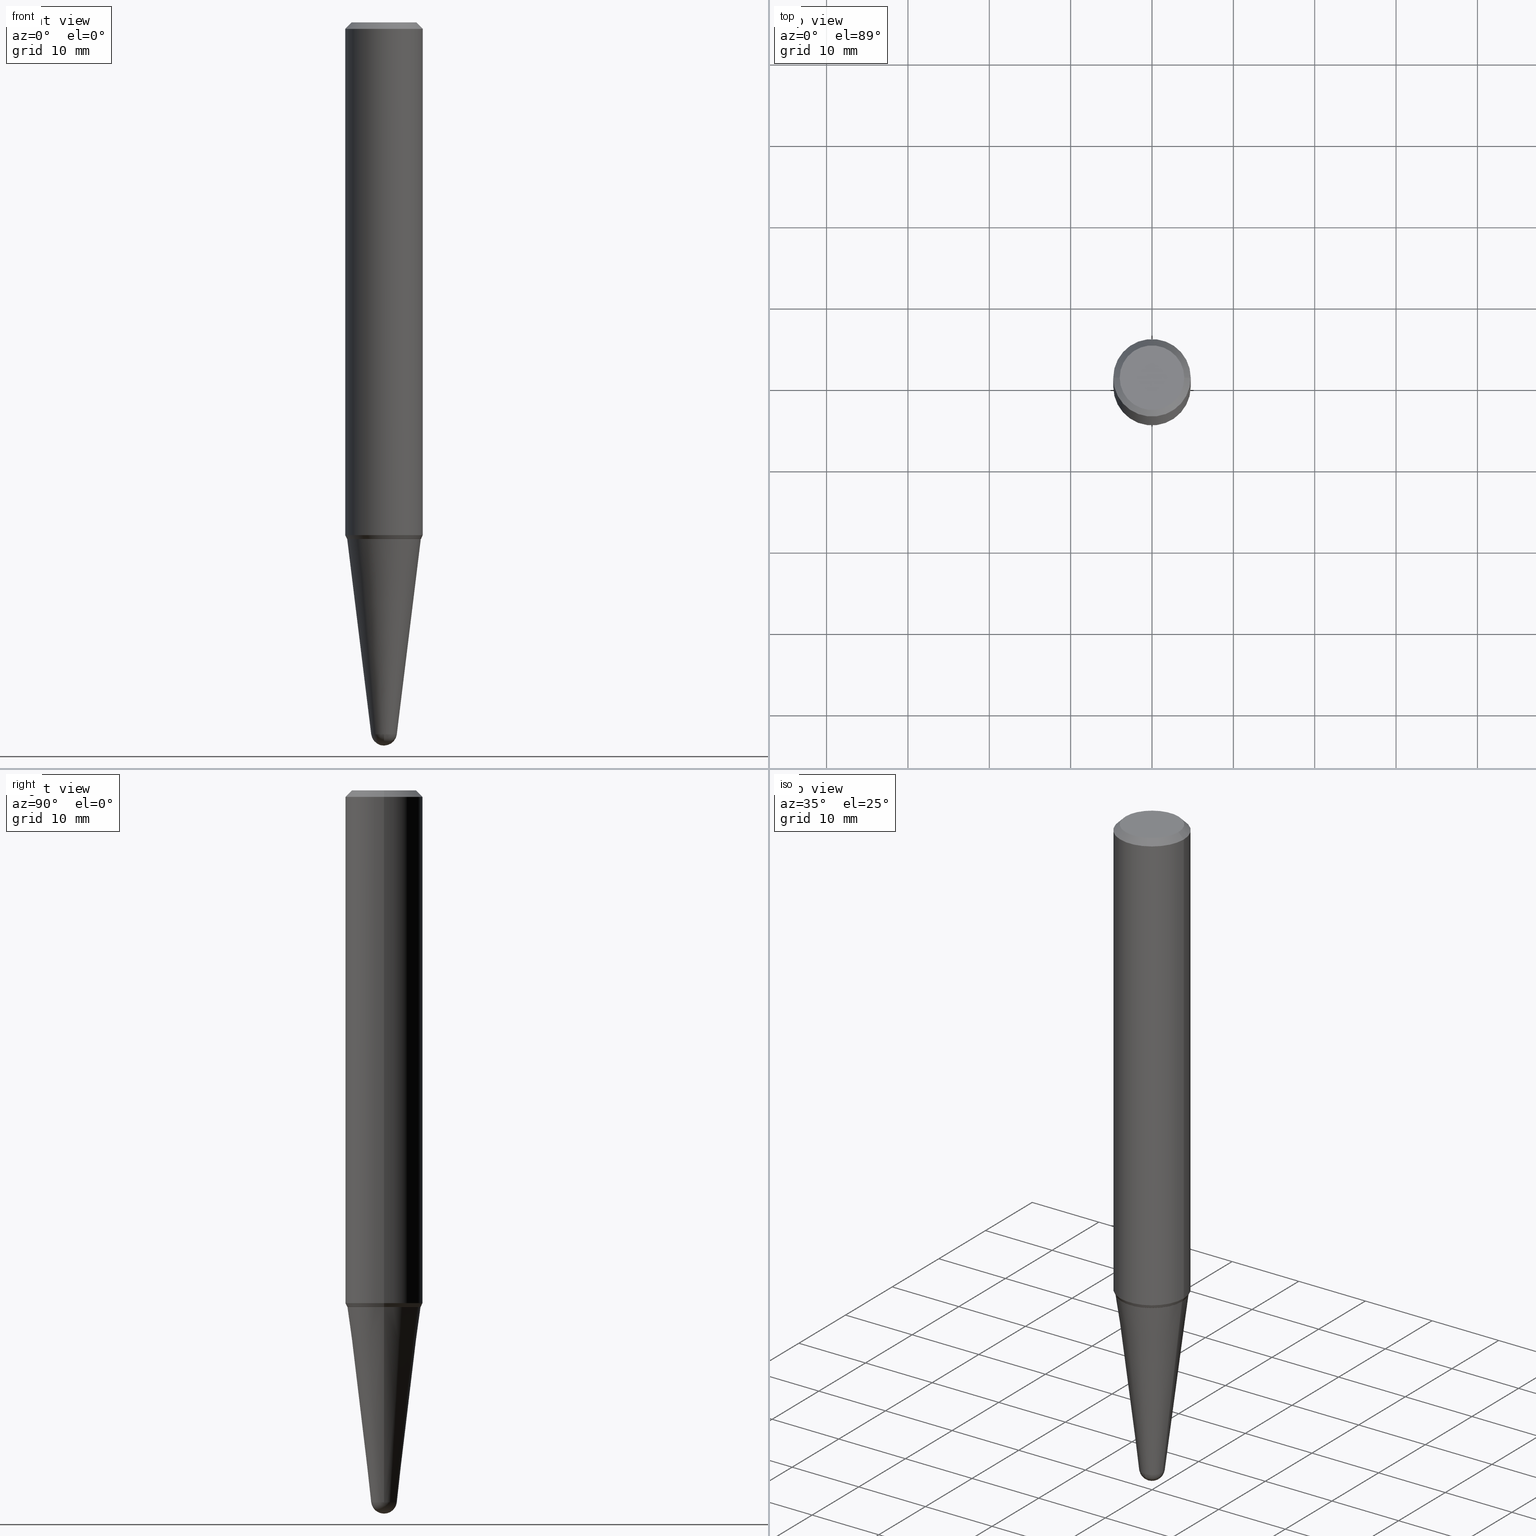
[diagram: canonical four-view strip — front | top / right | iso, engineering-drawing reading convention]
A machine part, canonical four-view strip (front | top / right | iso — engineering-drawing reading convention). The complete STEP part file that produces these views, byte-faithful:
ISO-10303-21;
HEADER;
FILE_DESCRIPTION (( 'STEP AP203' ),
    '1' );
FILE_NAME ('32426.STEP',
    '2024-03-04T15:23:30',
    ( '' ),
    ( '' ),
    'SwSTEP 2.0',
    'SolidWorks 2023',
    '' );
FILE_SCHEMA (( 'CONFIG_CONTROL_DESIGN' ));
ENDSEC;

DATA;
#1 = ORIENTED_EDGE ( 'NONE', *, *, #248, .T. ) ;
#2 = COORDINATED_UNIVERSAL_TIME_OFFSET ( 5, 0, .BEHIND. ) ;
#3 = CC_DESIGN_APPROVAL ( #399, ( #174 ) ) ;
#4 = DIRECTION ( 'NONE',  ( 2.438088387897960049E-29, -3.491481338843145188E-15, -1.000000000000000000 ) ) ;
#5 = DIRECTION ( 'NONE',  ( -2.445468806185136597E-29, 3.491481338843145583E-15, 1.000000000000000000 ) ) ;
#6 = AXIS2_PLACEMENT_3D ( 'NONE', #19, #198, #447 ) ;
#7 = CIRCLE ( 'NONE', #357, 0.06203413447758302640 ) ;
#8 = ORIENTED_EDGE ( 'NONE', *, *, #44, .F. ) ;
#9 = ORIENTED_EDGE ( 'NONE', *, *, #200, .T. ) ;
#10 = CARTESIAN_POINT ( 'NONE',  ( 8.424925751119379227E-29, -1.202856113591557066E-14, -3.445116833962821534 ) ) ;
#11 = PRODUCT_RELATED_PRODUCT_CATEGORY ( 'detail', '', ( #172 ) ) ;
#12 = DIRECTION ( 'NONE',  ( 1.000000000000000000, -6.982962677686273810E-15, 0.000000000000000000 ) ) ;
#13 = ORIENTED_EDGE ( 'NONE', *, *, #458, .F. ) ;
#14 = DATE_AND_TIME ( #288, #429 ) ;
#15 = DIRECTION ( 'NONE',  ( 1.000000000000000000, -6.982962677686270655E-15, 0.000000000000000000 ) ) ;
#16 = CARTESIAN_POINT ( 'NONE',  ( 6.068291489219931183E-29, -8.663911982718648619E-15, -2.481443015699839716 ) ) ;
#17 = AXIS2_PLACEMENT_3D ( 'NONE', #300, #185, #403 ) ;
#18 =( NAMED_UNIT ( * ) SI_UNIT ( $, .STERADIAN. ) SOLID_ANGLE_UNIT ( ) );
#19 = CARTESIAN_POINT ( 'NONE',  ( 1.481771224913538024E-44, -2.115576599110663894E-30, -6.059252202137306602E-16 ) ) ;
#20 = DIRECTION ( 'NONE',  ( -2.445468806185136597E-29, 3.491481338843145583E-15, 1.000000000000000000 ) ) ;
#21 = CARTESIAN_POINT ( 'NONE',  ( 0.1562500000000004163, -1.233702489286408510E-15, -6.059252202137225744E-16 ) ) ;
#22 = PERSON_AND_ORGANIZATION ( #278, #153 ) ;
#23 = ORIENTED_EDGE ( 'NONE', *, *, #378, .F. ) ;
#24 = DIRECTION ( 'NONE',  ( 1.000000000000000000, -6.982962677686261189E-15, 0.000000000000000000 ) ) ;
#25 = SPHERICAL_SURFACE ( 'NONE', #117, 0.06250000000000013878 ) ;
#26 = AXIS2_PLACEMENT_3D ( 'NONE', #352, #4, #341 ) ;
#27 = VERTEX_POINT ( 'NONE', #62 ) ;
#28 = DIRECTION ( 'NONE',  ( -1.000000000000000000, 7.105427357601001070E-15, -4.926315508542082329E-29 ) ) ;
#29 = LINE ( 'NONE', #65, #213 ) ;
#30 = DIRECTION ( 'NONE',  ( 1.000000000000000000, -6.982962677686273810E-15, 0.000000000000000000 ) ) ;
#31 = ORIENTED_EDGE ( 'NONE', *, *, #378, .T. ) ;
#32 = APPROVAL_ROLE ( '' ) ;
#33 = DIRECTION ( 'NONE',  ( -2.445468806185136877E-29, 3.491481338843145188E-15, 1.000000000000000000 ) ) ;
#34 = DATE_AND_TIME ( #302, #375 ) ;
#35 = AXIS2_PLACEMENT_3D ( 'NONE', #245, #392, #209 ) ;
#36 = CARTESIAN_POINT ( 'NONE',  ( 6.113672015462839250E-29, -8.728703347107860209E-15, -2.499999999999999112 ) ) ;
#37 = ADVANCED_BREP_SHAPE_REPRESENTATION ( '32426', ( #351, #43, #17 ), #428 ) ;
#38 = ORIENTED_EDGE ( 'NONE', *, *, #319, .T. ) ;
#39 = DIRECTION ( 'NONE',  ( 1.000000000000000000, -6.982962677686273810E-15, 0.000000000000000000 ) ) ;
#40 = VECTOR ( 'NONE', #418, 39.37007874015748143 ) ;
#41 = DIRECTION ( 'NONE',  ( 1.000000000000000000, -6.982962677686270655E-15, 0.000000000000000000 ) ) ;
#42 = CIRCLE ( 'NONE', #359, 0.06250000000000013878 ) ;
#43 = MANIFOLD_SOLID_BREP ( 'Body-Move/Copy2[2]', #267 ) ;
#44 = EDGE_CURVE ( 'NONE', #425, #314, #42, .T. ) ;
#45 = PLANE ( 'NONE',  #259 ) ;
#46 = ORIENTED_EDGE ( 'NONE', *, *, #410, .T. ) ;
#47 = ADVANCED_FACE ( 'NONE', ( #261 ), #367, .T. ) ;
#48 = APPROVAL_DATE_TIME ( #14, #132 ) ;
#49 = DIRECTION ( 'NONE',  ( -1.000000000000000000, 6.982962677686266711E-15, 0.000000000000000000 ) ) ;
#50 = ADVANCED_FACE ( 'NONE', ( #236 ), #347, .T. ) ;
#51 = APPROVAL_STATUS ( 'not_yet_approved' ) ;
#52 = ADVANCED_FACE ( 'NONE', ( #380 ), #104, .T. ) ;
#53 = AXIS2_PLACEMENT_3D ( 'NONE', #95, #309, #460 ) ;
#54 = CIRCLE ( 'NONE', #6, 0.1562500000000004163 ) ;
#55 = PERSON_AND_ORGANIZATION ( #278, #153 ) ;
#56 = CARTESIAN_POINT ( 'NONE',  ( 1.481771224913538024E-44, -2.115576599110663894E-30, -6.059252202137306602E-16 ) ) ;
#57 = EDGE_CURVE ( 'NONE', #150, #350, #85, .T. ) ;
#58 = LENGTH_MEASURE_WITH_UNIT ( LENGTH_MEASURE( 0.02539999999999999897 ), #118 );
#59 = CARTESIAN_POINT ( 'NONE',  ( 0.1874999999999999722, -1.418414293905023123E-15, -0.03125000000000003469 ) ) ;
#60 = PERSON_AND_ORGANIZATION_ROLE ( 'creator' ) ;
#61 = AXIS2_PLACEMENT_3D ( 'NONE', #168, #271, #169 ) ;
#62 = CARTESIAN_POINT ( 'NONE',  ( -0.06203413447758302640, -9.525575862499874588E-15, -3.445116833962821534 ) ) ;
#63 = CARTESIAN_POINT ( 'NONE',  ( 7.642090019328561499E-31, -1.091087918388484350E-16, -0.03125000000000003469 ) ) ;
#64 = DIRECTION ( 'NONE',  ( 1.000000000000000000, -6.982962677686266711E-15, 0.000000000000000000 ) ) ;
#65 = CARTESIAN_POINT ( 'NONE',  ( 0.1875000000000001388, -1.309305502066173825E-15, 5.931196827434387479E-16 ) ) ;
#66 = CARTESIAN_POINT ( 'NONE',  ( -4.407790362220312438E-16, -0.06203413447759470456, -3.445116833962821534 ) ) ;
#67 = AXIS2_PLACEMENT_3D ( 'NONE', #122, #157, #301 ) ;
#68 = VECTOR ( 'NONE', #197, 39.37007874015748143 ) ;
#69 = LINE ( 'NONE', #125, #322 ) ;
#70 = EDGE_CURVE ( 'NONE', #412, #110, #143, .T. ) ;
#71 = DIRECTION ( 'NONE',  ( -2.445468806185136597E-29, 3.491481338843145583E-15, 1.000000000000000000 ) ) ;
#72 = ORIENTED_EDGE ( 'NONE', *, *, #70, .T. ) ;
#73 = EDGE_CURVE ( 'NONE', #294, #111, #431, .T. ) ;
#74 = DIRECTION ( 'NONE',  ( 1.000000000000000000, -6.982962677686261977E-15, 0.000000000000000000 ) ) ;
#75 = FACE_OUTER_BOUND ( 'NONE', #283, .T. ) ;
#76 = EDGE_LOOP ( 'NONE', ( #91, #265, #9, #233 ) ) ;
#77 = AXIS2_PLACEMENT_3D ( 'NONE', #393, #433, #41 ) ;
#78 = ORIENTED_EDGE ( 'NONE', *, *, #436, .F. ) ;
#79 = EDGE_LOOP ( 'NONE', ( #182, #215, #227, #170 ) ) ;
#80 = DIRECTION ( 'NONE',  ( 2.445468806185136597E-29, -3.491481338843145583E-15, -1.000000000000000000 ) ) ;
#81 = ADVANCED_FACE ( 'NONE', ( #190 ), #407, .T. ) ;
#82 = APPLICATION_PROTOCOL_DEFINITION ( 'international standard', 'config_control_design', 1994, #338 ) ;
#83 = CC_DESIGN_DATE_AND_TIME_ASSIGNMENT ( #34, #270, ( #120 ) ) ;
#84 = APPROVAL_DATE_TIME ( #400, #223 ) ;
#85 = CIRCLE ( 'NONE', #362, 0.1875000000000003331 ) ;
#86 = AXIS2_PLACEMENT_3D ( 'NONE', #56, #376, #297 ) ;
#87 = ORIENTED_EDGE ( 'NONE', *, *, #458, .T. ) ;
#88 = DIRECTION ( 'NONE',  ( 6.982962677686265922E-15, 1.000000000000000000, 0.000000000000000000 ) ) ;
#89 = CARTESIAN_POINT ( 'NONE',  ( 8.854442568795960594E-29, -1.179729577650343892E-14, -3.500000000000000000 ) ) ;
#90 = DIRECTION ( 'NONE',  ( -0.1218693434051475594, 4.331390133080061195E-15, 0.9925461516413219831 ) ) ;
#91 = ORIENTED_EDGE ( 'NONE', *, *, #410, .F. ) ;
#92 = EDGE_CURVE ( 'NONE', #27, #412, #225, .T. ) ;
#93 = ORIENTED_EDGE ( 'NONE', *, *, #448, .F. ) ;
#94 = DIRECTION ( 'NONE',  ( -1.000000000000000000, 6.982962677686265922E-15, -4.883557194083112340E-29 ) ) ;
#95 = CARTESIAN_POINT ( 'NONE',  ( 6.112449281059747569E-29, -8.726957606438441072E-15, -2.499499999999999389 ) ) ;
#96 = UNCERTAINTY_MEASURE_WITH_UNIT (LENGTH_MEASURE( 1.000000000000000082E-05 ), #264, 'distance_accuracy_value', 'NONE');
#97 = PLANE ( 'NONE',  #321 ) ;
#98 = EDGE_LOOP ( 'NONE', ( #221, #38, #398, #454, #435 ) ) ;
#99 = DIRECTION ( 'NONE',  ( -7.105427357601000281E-15, -1.000000000000000000, 0.000000000000000000 ) ) ;
#100 = DIRECTION ( 'NONE',  ( -2.445468806185136877E-29, 3.491481338843145188E-15, 1.000000000000000000 ) ) ;
#101 = FACE_OUTER_BOUND ( 'NONE', #434, .T. ) ;
#102 = CARTESIAN_POINT ( 'NONE',  ( -1.450455682483482035E-44, 2.070866303999251778E-30, 5.931196827434296760E-16 ) ) ;
#103 = AXIS2_PLACEMENT_3D ( 'NONE', #295, #20, #64 ) ;
#104 = CONICAL_SURFACE ( 'NONE', #203, 0.1790798899376514486, 0.4363323129985706705 ) ;
#105 = CARTESIAN_POINT ( 'NONE',  ( 8.424925751119379227E-29, -1.202856113591557066E-14, -3.445116833962821534 ) ) ;
#106 = EDGE_CURVE ( 'NONE', #350, #150, #280, .T. ) ;
#107 = VERTEX_POINT ( 'NONE', #59 ) ;
#108 = VECTOR ( 'NONE', #379, 39.37007874015748143 ) ;
#109 = DIRECTION ( 'NONE',  ( -2.445468806185136597E-29, 3.491481338843145583E-15, 1.000000000000000000 ) ) ;
#110 = VERTEX_POINT ( 'NONE', #339 ) ;
#111 = VERTEX_POINT ( 'NONE', #21 ) ;
#112 = CC_DESIGN_APPROVAL ( #223, ( #120 ) ) ;
#113 = CC_DESIGN_SECURITY_CLASSIFICATION ( #164, ( #174 ) ) ;
#114 = ORIENTED_EDGE ( 'NONE', *, *, #126, .F. ) ;
#115 = APPROVAL_DATE_TIME ( #340, #399 ) ;
#116 = CIRCLE ( 'NONE', #165, 0.06203413447758302640 ) ;
#117 = AXIS2_PLACEMENT_3D ( 'NONE', #354, #133, #136 ) ;
#118 =( LENGTH_UNIT ( ) NAMED_UNIT ( * ) SI_UNIT ( $, .METRE. ) );
#119 = ORIENTED_EDGE ( 'NONE', *, *, #387, .T. ) ;
#120 = PRODUCT_DEFINITION ( 'UNKNOWN', '', #174, #419 ) ;
#121 = CARTESIAN_POINT ( 'NONE',  ( -0.1780798899376515865, -7.463369625306297822E-15, -2.499999999999999556 ) ) ;
#122 = CARTESIAN_POINT ( 'NONE',  ( 8.424925751119379227E-29, -1.202856113591557066E-14, -3.445116833962821534 ) ) ;
#123 = PERSON_AND_ORGANIZATION_ROLE ( 'design_supplier' ) ;
#124 = FACE_OUTER_BOUND ( 'NONE', #365, .T. ) ;
#125 = CARTESIAN_POINT ( 'NONE',  ( -0.1875000000000001388, 1.332267629550191201E-15, 5.931196827434205055E-16 ) ) ;
#126 = EDGE_CURVE ( 'NONE', #111, #294, #54, .T. ) ;
#127 = CIRCLE ( 'NONE', #390, 0.1790798899376514486 ) ;
#128 = DIRECTION ( 'NONE',  ( -2.445468806185136597E-29, 3.491481338843145583E-15, 1.000000000000000000 ) ) ;
#129 = AXIS2_PLACEMENT_3D ( 'NONE', #155, #413, #24 ) ;
#130 = ORIENTED_EDGE ( 'NONE', *, *, #126, .T. ) ;
#131 = DIRECTION ( 'NONE',  ( -2.445468806185136597E-29, 3.491481338843145583E-15, 1.000000000000000000 ) ) ;
#132 = APPROVAL ( #51, 'UNSPECIFIED' ) ;
#133 = DIRECTION ( 'NONE',  ( -1.000000000000000000, 6.982962677686265922E-15, -4.883557194083112340E-29 ) ) ;
#134 = ORIENTED_EDGE ( 'NONE', *, *, #44, .T. ) ;
#135 = ADVANCED_FACE ( 'NONE', ( #416 ), #257, .T. ) ;
#136 = DIRECTION ( 'NONE',  ( 6.982962677686265922E-15, 1.000000000000000000, 0.000000000000000000 ) ) ;
#137 = CIRCLE ( 'NONE', #147, 0.06250000000000013878 ) ;
#138 = DIRECTION ( 'NONE',  ( 1.000000000000000000, -6.982962677686265922E-15, 4.883557194083112340E-29 ) ) ;
#139 = CARTESIAN_POINT ( 'NONE',  ( 8.424925751119379227E-29, -1.202856113591557066E-14, -3.445116833962821534 ) ) ;
#140 = ADVANCED_FACE ( 'NONE', ( #124 ), #97, .F. ) ;
#141 = VECTOR ( 'NONE', #90, 39.37007874015748143 ) ;
#142 = CONICAL_SURFACE ( 'NONE', #444, 0.1785798899376515592, 0.7853981633977213939 ) ;
#143 = CIRCLE ( 'NONE', #129, 0.1780798899376515865 ) ;
#144 = ORIENTED_EDGE ( 'NONE', *, *, #448, .T. ) ;
#145 = DIRECTION ( 'NONE',  ( -2.445468806185136597E-29, 3.491481338843145583E-15, 1.000000000000000000 ) ) ;
#146 = EDGE_CURVE ( 'NONE', #408, #27, #116, .T. ) ;
#147 = AXIS2_PLACEMENT_3D ( 'NONE', #317, #138, #232 ) ;
#148 = APPROVAL_PERSON_ORGANIZATION ( #331, #132, #186 ) ;
#149 = EDGE_CURVE ( 'NONE', #389, #350, #171, .T. ) ;
#150 = VERTEX_POINT ( 'NONE', #244 ) ;
#151 = PERSON_AND_ORGANIZATION_ROLE ( 'design_owner' ) ;
#152 = CARTESIAN_POINT ( 'NONE',  ( 0.1874999999999999722, -1.395452166421010480E-15, -0.03125000000000003469 ) ) ;
#153 = ORGANIZATION ( 'UNSPECIFIED', 'UNSPECIFIED', '' ) ;
#154 = AXIS2_PLACEMENT_3D ( 'NONE', #230, #369, #333 ) ;
#155 = CARTESIAN_POINT ( 'NONE',  ( 6.113672015462840371E-29, -8.728703347107863365E-15, -2.499999999999999556 ) ) ;
#156 = ORIENTED_EDGE ( 'NONE', *, *, #323, .T. ) ;
#157 = DIRECTION ( 'NONE',  ( -2.445468806185136597E-29, 3.491481338843145583E-15, 1.000000000000000000 ) ) ;
#158 = CALENDAR_DATE ( 2024, 4, 3 ) ;
#159 = CC_DESIGN_PERSON_AND_ORGANIZATION_ASSIGNMENT ( #291, #263, ( #164 ) ) ;
#160 = EDGE_LOOP ( 'NONE', ( #93, #119, #457, #308 ) ) ;
#161 = DIRECTION ( 'NONE',  ( 2.438088387897960049E-29, -3.491481338843145188E-15, -1.000000000000000000 ) ) ;
#162 = CARTESIAN_POINT ( 'NONE',  ( -0.1790798899376514486, -7.454518457279275310E-15, -2.499499999999999389 ) ) ;
#163 = VECTOR ( 'NONE', #337, 39.37007874015748854 ) ;
#164 = SECURITY_CLASSIFICATION ( '', '', #451 ) ;
#165 = AXIS2_PLACEMENT_3D ( 'NONE', #139, #71, #276 ) ;
#166 = ORIENTED_EDGE ( 'NONE', *, *, #269, .F. ) ;
#167 = LINE ( 'NONE', #459, #286 ) ;
#168 = CARTESIAN_POINT ( 'NONE',  ( 7.642090019328561499E-31, -1.091087918388484350E-16, -0.03125000000000003469 ) ) ;
#169 = DIRECTION ( 'NONE',  ( 1.000000000000000000, -6.982962677686266711E-15, 0.000000000000000000 ) ) ;
#170 = ORIENTED_EDGE ( 'NONE', *, *, #220, .F. ) ;
#171 = LINE ( 'NONE', #315, #406 ) ;
#172 = PRODUCT ( '32426', '32426', '', ( #449 ) ) ;
#173 = CARTESIAN_POINT ( 'NONE',  ( -0.1562500000000004163, 1.145642314307903329E-15, -6.059252202137384502E-16 ) ) ;
#174 = PRODUCT_DEFINITION_FORMATION_WITH_SPECIFIED_SOURCE ( 'ANY', '', #172, .NOT_KNOWN. ) ;
#175 = DIRECTION ( 'NONE',  ( -2.438088387897960049E-29, 3.491481338843145188E-15, 1.000000000000000000 ) ) ;
#176 = DIRECTION ( 'NONE',  ( 1.000000000000000000, -6.982962677686270655E-15, 0.000000000000000000 ) ) ;
#177 = CARTESIAN_POINT ( 'NONE',  ( 0.1875000000000003331, -9.973217484784825205E-15, -2.481443015699839716 ) ) ;
#178 = VECTOR ( 'NONE', #396, 39.37007874015748143 ) ;
#179 = CARTESIAN_POINT ( 'NONE',  ( 6.112449281059747569E-29, -8.726957606438441072E-15, -2.499499999999999389 ) ) ;
#180 = CALENDAR_DATE ( 2024, 4, 3 ) ;
#181 = FACE_OUTER_BOUND ( 'NONE', #364, .T. ) ;
#182 = ORIENTED_EDGE ( 'NONE', *, *, #106, .T. ) ;
#183 = AXIS2_PLACEMENT_3D ( 'NONE', #238, #382, #12 ) ;
#184 = ORIENTED_EDGE ( 'NONE', *, *, #73, .T. ) ;
#185 = DIRECTION ( 'NONE',  ( 0.000000000000000000, 0.000000000000000000, 1.000000000000000000 ) ) ;
#186 = APPROVAL_ROLE ( '' ) ;
#187 = ADVANCED_FACE ( 'NONE', ( #386 ), #205, .T. ) ;
#188 = ORIENTED_EDGE ( 'NONE', *, *, #285, .T. ) ;
#189 = CC_DESIGN_PERSON_AND_ORGANIZATION_ASSIGNMENT ( #22, #151, ( #172 ) ) ;
#190 = FACE_OUTER_BOUND ( 'NONE', #251, .T. ) ;
#191 = ORIENTED_EDGE ( 'NONE', *, *, #319, .F. ) ;
#192 =( NAMED_UNIT ( * ) PLANE_ANGLE_UNIT ( ) SI_UNIT ( $, .RADIAN. ) );
#193 = PERSON_AND_ORGANIZATION ( #278, #153 ) ;
#194 = CIRCLE ( 'NONE', #183, 0.06203413447758302640 ) ;
#195 = CARTESIAN_POINT ( 'NONE',  ( -0.1790798899376514486, -7.454518457279275310E-15, -2.499499999999999389 ) ) ;
#196 = DIRECTION ( 'NONE',  ( 2.445468806185136597E-29, -3.491481338843145583E-15, -1.000000000000000000 ) ) ;
#197 = DIRECTION ( 'NONE',  ( 0.1218693434051475594, 2.614447289843978112E-15, 0.9925461516413219831 ) ) ;
#198 = DIRECTION ( 'NONE',  ( -2.445468806185136597E-29, 3.491481338843145583E-15, 1.000000000000000000 ) ) ;
#199 = DIRECTION ( 'NONE',  ( 1.000000000000000000, -6.982962677686265922E-15, 0.000000000000000000 ) ) ;
#200 = EDGE_CURVE ( 'NONE', #310, #389, #167, .T. ) ;
#201 = CIRCLE ( 'NONE', #77, 0.1785798899376515592 ) ;
#202 = CARTESIAN_POINT ( 'NONE',  ( 8.424925751119379227E-29, -1.202856113591557066E-14, -3.445116833962821534 ) ) ;
#203 = AXIS2_PLACEMENT_3D ( 'NONE', #335, #450, #372 ) ;
#204 = DIRECTION ( 'NONE',  ( -1.000000000000000000, 6.982962677686265922E-15, -4.876176775795935793E-29 ) ) ;
#205 = CYLINDRICAL_SURFACE ( 'NONE', #35, 0.1875000000000001388 ) ;
#206 = CIRCLE ( 'NONE', #384, 0.1785798899376515592 ) ;
#207 = EDGE_CURVE ( 'NONE', #314, #345, #194, .T. ) ;
#208 = EDGE_LOOP ( 'NONE', ( #1, #144, #282, #432 ) ) ;
#209 = DIRECTION ( 'NONE',  ( 1.000000000000000000, -6.982962677686266711E-15, 4.852736867747362844E-29 ) ) ;
#210 = FACE_OUTER_BOUND ( 'NONE', #299, .T. ) ;
#211 = ADVANCED_FACE ( 'NONE', ( #287 ), #306, .T. ) ;
#212 = ADVANCED_FACE ( 'NONE', ( #441 ), #440, .F. ) ;
#213 = VECTOR ( 'NONE', #33, 39.37007874015748143 ) ;
#214 = APPLICATION_CONTEXT ( 'configuration controlled 3d designs of mechanical parts and assemblies' ) ;
#215 = ORIENTED_EDGE ( 'NONE', *, *, #228, .T. ) ;
#216 = EDGE_LOOP ( 'NONE', ( #184, #130 ) ) ;
#217 = CC_DESIGN_DATE_AND_TIME_ASSIGNMENT ( #368, #219, ( #164 ) ) ;
#218 = VERTEX_POINT ( 'NONE', #162 ) ;
#219 = DATE_TIME_ROLE ( 'classification_date' ) ;
#220 = EDGE_CURVE ( 'NONE', #350, #107, #29, .T. ) ;
#221 = ORIENTED_EDGE ( 'NONE', *, *, #92, .F. ) ;
#222 = COORDINATED_UNIVERSAL_TIME_OFFSET ( 5, 0, .BEHIND. ) ;
#223 = APPROVAL ( #414, 'UNSPECIFIED' ) ;
#224 = COORDINATED_UNIVERSAL_TIME_OFFSET ( 5, 0, .BEHIND. ) ;
#225 = LINE ( 'NONE', #266, #141 ) ;
#226 = CARTESIAN_POINT ( 'NONE',  ( 8.698928373755703197E-29, -1.158290521407307856E-14, -3.437499999999999556 ) ) ;
#227 = ORIENTED_EDGE ( 'NONE', *, *, #323, .F. ) ;
#228 = EDGE_CURVE ( 'NONE', #150, #241, #69, .T. ) ;
#229 = CARTESIAN_POINT ( 'NONE',  ( 4.331820457996177602E-16, 0.06203413447757105681, -3.445116833962821534 ) ) ;
#230 = CARTESIAN_POINT ( 'NONE',  ( 6.068291489219931183E-29, -8.663911982718648619E-15, -2.481443015699839716 ) ) ;
#231 = LOCAL_TIME ( 10, 23, 30.00000000000000000, #2 ) ;
#232 = DIRECTION ( 'NONE',  ( 6.982962677686265922E-15, 1.000000000000000000, 0.000000000000000000 ) ) ;
#233 = ORIENTED_EDGE ( 'NONE', *, *, #387, .F. ) ;
#234 = FACE_OUTER_BOUND ( 'NONE', #374, .T. ) ;
#235 = DIRECTION ( 'NONE',  ( -2.445468806185136597E-29, 3.491481338843145583E-15, 1.000000000000000000 ) ) ;
#236 = FACE_OUTER_BOUND ( 'NONE', #208, .T. ) ;
#237 = CYLINDRICAL_SURFACE ( 'NONE', #239, 0.1875000000000001388 ) ;
#238 = CARTESIAN_POINT ( 'NONE',  ( 8.424925751119379227E-29, -1.202856113591557066E-14, -3.445116833962821534 ) ) ;
#239 = AXIS2_PLACEMENT_3D ( 'NONE', #102, #381, #461 ) ;
#240 = CLOSED_SHELL ( 'NONE', ( #394, #81, #303, #135, #140 ) ) ;
#241 = VERTEX_POINT ( 'NONE', #307 ) ;
#242 = DIRECTION ( 'NONE',  ( -2.445468806185136597E-29, 3.491481338843145583E-15, 1.000000000000000000 ) ) ;
#243 = DIMENSIONAL_EXPONENTS ( 1.000000000000000000, 0.000000000000000000, 0.000000000000000000, 0.000000000000000000, 0.000000000000000000, 0.000000000000000000, 0.000000000000000000 ) ;
#244 = CARTESIAN_POINT ( 'NONE',  ( -0.1875000000000003331, -7.331644353168459193E-15, -2.481443015699839716 ) ) ;
#245 = CARTESIAN_POINT ( 'NONE',  ( -1.450455682483482035E-44, 2.070866303999251778E-30, 5.931196827434296760E-16 ) ) ;
#246 = AXIS2_PLACEMENT_3D ( 'NONE', #10, #145, #39 ) ;
#247 = AXIS2_PLACEMENT_3D ( 'NONE', #226, #94, #88 ) ;
#248 = EDGE_CURVE ( 'NONE', #389, #218, #327, .T. ) ;
#249 = DIRECTION ( 'NONE',  ( 1.000000000000000000, -6.982962677686265922E-15, 4.876176775795935793E-29 ) ) ;
#250 = CARTESIAN_POINT ( 'NONE',  ( 6.113672015462840371E-29, -8.728703347107863365E-15, -2.499999999999999556 ) ) ;
#251 = EDGE_LOOP ( 'NONE', ( #404, #134, #191, #370 ) ) ;
#252 = CARTESIAN_POINT ( 'NONE',  ( -0.1874999999999999722, 1.200196710227326499E-15, -0.03125000000000003469 ) ) ;
#253 = AXIS2_PLACEMENT_3D ( 'NONE', #202, #348, #30 ) ;
#254 = EDGE_CURVE ( 'NONE', #345, #110, #312, .T. ) ;
#255 = ORIENTED_EDGE ( 'NONE', *, *, #358, .F. ) ;
#256 = APPLICATION_PROTOCOL_DEFINITION ( 'international standard', 'config_control_design', 1994, #214 ) ;
#257 = CONICAL_SURFACE ( 'NONE', #67, 0.06203413447758302640, 0.1221730476396031551 ) ;
#258 = CARTESIAN_POINT ( 'NONE',  ( 8.698928373755703197E-29, -1.158290521407307856E-14, -3.437499999999999556 ) ) ;
#259 = AXIS2_PLACEMENT_3D ( 'NONE', #36, #175, #249 ) ;
#260 = COORDINATED_UNIVERSAL_TIME_OFFSET ( 5, 0, .BEHIND. ) ;
#261 = FACE_OUTER_BOUND ( 'NONE', #411, .T. ) ;
#262 = DIRECTION ( 'NONE',  ( -1.000000000000000000, 6.982962677686266711E-15, 0.000000000000000000 ) ) ;
#263 = PERSON_AND_ORGANIZATION_ROLE ( 'classification_officer' ) ;
#264 =( CONVERSION_BASED_UNIT ( 'INCH', #58 ) LENGTH_UNIT ( ) NAMED_UNIT ( #243 ) );
#265 = ORIENTED_EDGE ( 'NONE', *, *, #349, .T. ) ;
#266 = CARTESIAN_POINT ( 'NONE',  ( -0.06203413447758302640, -1.158778209969345293E-14, -3.445116833962821534 ) ) ;
#267 = CLOSED_SHELL ( 'NONE', ( #211, #187, #50, #402, #353, #298, #52, #311, #47, #212 ) ) ;
#268 = LINE ( 'NONE', #152, #40 ) ;
#269 = EDGE_CURVE ( 'NONE', #345, #408, #7, .T. ) ;
#270 = DATE_TIME_ROLE ( 'creation_date' ) ;
#271 = DIRECTION ( 'NONE',  ( -2.445468806185136597E-29, 3.491481338843145583E-15, 1.000000000000000000 ) ) ;
#272 = AXIS2_PLACEMENT_3D ( 'NONE', #439, #80, #49 ) ;
#273 = CARTESIAN_POINT ( 'NONE',  ( -0.1785798899376515592, -7.457167684453385722E-15, -2.499999999999999112 ) ) ;
#274 = DIRECTION ( 'NONE',  ( 0.4226182617406887276, 2.132291770428324661E-16, 0.9063077870366548217 ) ) ;
#275 = PRODUCT_DEFINITION_SHAPE ( 'NONE', 'NONE',  #120 ) ;
#276 = DIRECTION ( 'NONE',  ( 1.000000000000000000, -6.982962677686273810E-15, 0.000000000000000000 ) ) ;
#277 = ORIENTED_EDGE ( 'NONE', *, *, #57, .T. ) ;
#278 = PERSON ( 'UNSPECIFIED', 'UNSPECIFIED', 'UNSPECIFIED', ('UNSPECIFIED'), ('UNSPECIFIED'), ('UNSPECIFIED') ) ;
#279 = CIRCLE ( 'NONE', #415, 0.1780798899376515865 ) ;
#280 = CIRCLE ( 'NONE', #154, 0.1875000000000003331 ) ;
#281 = CARTESIAN_POINT ( 'NONE',  ( 6.113672015462839250E-29, -8.728703347107860209E-15, -2.499999999999999112 ) ) ;
#282 = ORIENTED_EDGE ( 'NONE', *, *, #106, .F. ) ;
#283 = EDGE_LOOP ( 'NONE', ( #23, #292 ) ) ;
#284 = CC_DESIGN_PERSON_AND_ORGANIZATION_ASSIGNMENT ( #373, #60, ( #174 ) ) ;
#285 = EDGE_CURVE ( 'NONE', #425, #408, #137, .T. ) ;
#286 = VECTOR ( 'NONE', #422, 39.37007874015748143 ) ;
#287 = FACE_OUTER_BOUND ( 'NONE', #361, .T. ) ;
#288 = CALENDAR_DATE ( 2024, 4, 3 ) ;
#289 = CALENDAR_DATE ( 2024, 4, 3 ) ;
#290 = CC_DESIGN_PERSON_AND_ORGANIZATION_ASSIGNMENT ( #424, #388, ( #120 ) ) ;
#291 = PERSON_AND_ORGANIZATION ( #278, #153 ) ;
#292 = ORIENTED_EDGE ( 'NONE', *, *, #349, .F. ) ;
#293 = DIRECTION ( 'NONE',  ( -2.445468806185136597E-29, 3.491481338843145583E-15, 1.000000000000000000 ) ) ;
#294 = VERTEX_POINT ( 'NONE', #173 ) ;
#295 = CARTESIAN_POINT ( 'NONE',  ( 7.642090019328561499E-31, -1.091087918388484350E-16, -0.03125000000000003469 ) ) ;
#296 = CIRCLE ( 'NONE', #103, 0.1874999999999999722 ) ;
#297 = DIRECTION ( 'NONE',  ( 1.000000000000000000, -6.982962677686266711E-15, 4.891558762689331823E-29 ) ) ;
#298 = ADVANCED_FACE ( 'NONE', ( #385 ), #142, .T. ) ;
#299 = EDGE_LOOP ( 'NONE', ( #320, #421, #255, #446, #377 ) ) ;
#300 = CARTESIAN_POINT ( 'NONE',  ( 0.000000000000000000, 0.000000000000000000, 0.000000000000000000 ) ) ;
#301 = DIRECTION ( 'NONE',  ( 1.000000000000000000, -6.982962677686273810E-15, 0.000000000000000000 ) ) ;
#302 = CALENDAR_DATE ( 2024, 4, 3 ) ;
#303 = ADVANCED_FACE ( 'NONE', ( #234 ), #25, .T. ) ;
#304 = ORIENTED_EDGE ( 'NONE', *, *, #200, .F. ) ;
#305 = CARTESIAN_POINT ( 'NONE',  ( 6.112449281059747569E-29, -8.726957606438441072E-15, -2.499499999999999389 ) ) ;
#306 = CONICAL_SURFACE ( 'NONE', #272, 0.1874999999999999722, 0.7853981633974503884 ) ;
#307 = CARTESIAN_POINT ( 'NONE',  ( -0.1874999999999999722, -3.054242757728558250E-15, -0.03125000000000003469 ) ) ;
#308 = ORIENTED_EDGE ( 'NONE', *, *, #57, .F. ) ;
#309 = DIRECTION ( 'NONE',  ( -2.445468806185136597E-29, 3.491481338843145583E-15, 1.000000000000000000 ) ) ;
#310 = VERTEX_POINT ( 'NONE', #420 ) ;
#311 = ADVANCED_FACE ( 'NONE', ( #101 ), #237, .T. ) ;
#312 = LINE ( 'NONE', #423, #68 ) ;
#313 = CARTESIAN_POINT ( 'NONE',  ( 0.06203413447758302640, -1.121698587695203239E-14, -3.445116833962821534 ) ) ;
#314 = VERTEX_POINT ( 'NONE', #66 ) ;
#315 = CARTESIAN_POINT ( 'NONE',  ( 0.1790798899376514486, -9.977465794197223551E-15, -2.499499999999999389 ) ) ;
#316 = LOCAL_TIME ( 10, 23, 30.00000000000000000, #224 ) ;
#317 = CARTESIAN_POINT ( 'NONE',  ( 8.698928373755703197E-29, -1.158290521407307856E-14, -3.437499999999999556 ) ) ;
#318 = CARTESIAN_POINT ( 'NONE',  ( 6.113672015462839250E-29, -8.728703347107860209E-15, -2.499999999999999112 ) ) ;
#319 = EDGE_CURVE ( 'NONE', #27, #314, #405, .T. ) ;
#320 = ORIENTED_EDGE ( 'NONE', *, *, #146, .T. ) ;
#321 = AXIS2_PLACEMENT_3D ( 'NONE', #343, #161, #204 ) ;
#322 = VECTOR ( 'NONE', #100, 39.37007874015748143 ) ;
#323 = EDGE_CURVE ( 'NONE', #107, #241, #445, .T. ) ;
#324 = CARTESIAN_POINT ( 'NONE',  ( 0.1790798899376514486, -9.977465794197226707E-15, -2.499499999999999389 ) ) ;
#325 = ORIENTED_EDGE ( 'NONE', *, *, #248, .F. ) ;
#326 = ORIENTED_EDGE ( 'NONE', *, *, #73, .F. ) ;
#327 = CIRCLE ( 'NONE', #53, 0.1790798899376514486 ) ;
#328 = CC_DESIGN_APPROVAL ( #132, ( #164 ) ) ;
#329 = AXIS2_PLACEMENT_3D ( 'NONE', #63, #196, #262 ) ;
#330 = VERTEX_POINT ( 'NONE', #273 ) ;
#331 = PERSON_AND_ORGANIZATION ( #278, #153 ) ;
#332 = CARTESIAN_POINT ( 'NONE',  ( -0.1785798899376515592, -7.459816911627496134E-15, -2.499999999999999112 ) ) ;
#333 = DIRECTION ( 'NONE',  ( 1.000000000000000000, -6.982962677686265922E-15, 0.000000000000000000 ) ) ;
#334 = APPROVAL_PERSON_ORGANIZATION ( #55, #223, #336 ) ;
#335 = CARTESIAN_POINT ( 'NONE',  ( 6.112449281059747569E-29, -8.726957606438441072E-15, -2.499499999999999389 ) ) ;
#336 = APPROVAL_ROLE ( '' ) ;
#337 = DIRECTION ( 'NONE',  ( -0.4226182617406887276, 6.167240084480778447E-15, 0.9063077870366548217 ) ) ;
#338 = APPLICATION_CONTEXT ( 'configuration controlled 3d designs of mechanical parts and assemblies' ) ;
#339 = CARTESIAN_POINT ( 'NONE',  ( 0.1780798899376515865, -9.972228572188961407E-15, -2.499999999999999556 ) ) ;
#340 = DATE_AND_TIME ( #180, #231 ) ;
#341 = DIRECTION ( 'NONE',  ( -1.000000000000000000, 6.982962677686265922E-15, -4.876176775795935793E-29 ) ) ;
#342 = ORIENTED_EDGE ( 'NONE', *, *, #401, .F. ) ;
#343 = CARTESIAN_POINT ( 'NONE',  ( 6.113672015462842613E-29, -8.728703347107864943E-15, -2.500000000000000000 ) ) ;
#344 = ORIENTED_EDGE ( 'NONE', *, *, #401, .T. ) ;
#345 = VERTEX_POINT ( 'NONE', #313 ) ;
#346 = LOCAL_TIME ( 10, 23, 30.00000000000000000, #222 ) ;
#347 = CONICAL_SURFACE ( 'NONE', #456, 0.1790798899376514486, 0.4363323129985706705 ) ;
#348 = DIRECTION ( 'NONE',  ( -2.445468806185136597E-29, 3.491481338843145583E-15, 1.000000000000000000 ) ) ;
#349 = EDGE_CURVE ( 'NONE', #330, #310, #201, .T. ) ;
#350 = VERTEX_POINT ( 'NONE', #177 ) ;
#351 = MANIFOLD_SOLID_BREP ( 'Body-Move/Copy2[1]', #240 ) ;
#352 = CARTESIAN_POINT ( 'NONE',  ( 7.408856124567691367E-45, -1.057788299555332297E-30, -3.029626101068653794E-16 ) ) ;
#353 = ADVANCED_FACE ( 'NONE', ( #75 ), #45, .F. ) ;
#354 = CARTESIAN_POINT ( 'NONE',  ( 8.698928373755703197E-29, -1.158290521407307856E-14, -3.437499999999999556 ) ) ;
#355 = COORDINATED_UNIVERSAL_TIME_OFFSET ( 5, 0, .BEHIND. ) ;
#356 = DIRECTION ( 'NONE',  ( 1.000000000000000000, -6.982962677686273810E-15, 0.000000000000000000 ) ) ;
#357 = AXIS2_PLACEMENT_3D ( 'NONE', #105, #242, #356 ) ;
#358 = EDGE_CURVE ( 'NONE', #110, #412, #279, .T. ) ;
#359 = AXIS2_PLACEMENT_3D ( 'NONE', #258, #28, #99 ) ;
#360 = ORIENTED_EDGE ( 'NONE', *, *, #220, .T. ) ;
#361 = EDGE_LOOP ( 'NONE', ( #114, #363, #156, #342 ) ) ;
#362 = AXIS2_PLACEMENT_3D ( 'NONE', #16, #293, #199 ) ;
#363 = ORIENTED_EDGE ( 'NONE', *, *, #436, .T. ) ;
#364 = EDGE_LOOP ( 'NONE', ( #31, #46, #325, #304 ) ) ;
#365 = EDGE_LOOP ( 'NONE', ( #462, #72 ) ) ;
#366 = AXIS2_PLACEMENT_3D ( 'NONE', #281, #235, #15 ) ;
#367 = CONICAL_SURFACE ( 'NONE', #329, 0.1874999999999999722, 0.7853981633974503884 ) ;
#368 = DATE_AND_TIME ( #158, #346 ) ;
#369 = DIRECTION ( 'NONE',  ( -2.445468806185136597E-29, 3.491481338843145583E-15, 1.000000000000000000 ) ) ;
#370 = ORIENTED_EDGE ( 'NONE', *, *, #146, .F. ) ;
#371 = LINE ( 'NONE', #195, #163 ) ;
#372 = DIRECTION ( 'NONE',  ( 1.000000000000000000, -6.982962677686261977E-15, 0.000000000000000000 ) ) ;
#373 = PERSON_AND_ORGANIZATION ( #278, #153 ) ;
#374 = EDGE_LOOP ( 'NONE', ( #8, #188, #166, #442 ) ) ;
#375 = LOCAL_TIME ( 10, 23, 30.00000000000000000, #355 ) ;
#376 = DIRECTION ( 'NONE',  ( -2.445468806185136597E-29, 3.491481338843145583E-15, 1.000000000000000000 ) ) ;
#377 = ORIENTED_EDGE ( 'NONE', *, *, #269, .T. ) ;
#378 = EDGE_CURVE ( 'NONE', #310, #330, #206, .T. ) ;
#379 = DIRECTION ( 'NONE',  ( -0.7071067811867406405, 7.493145998871051513E-15, 0.7071067811863543939 ) ) ;
#380 = FACE_OUTER_BOUND ( 'NONE', #160, .T. ) ;
#381 = DIRECTION ( 'NONE',  ( -2.445468806185136597E-29, 3.491481338843145583E-15, 1.000000000000000000 ) ) ;
#382 = DIRECTION ( 'NONE',  ( -2.445468806185136597E-29, 3.491481338843145583E-15, 1.000000000000000000 ) ) ;
#383 = PERSON_AND_ORGANIZATION ( #278, #153 ) ;
#384 = AXIS2_PLACEMENT_3D ( 'NONE', #391, #430, #176 ) ;
#385 = FACE_OUTER_BOUND ( 'NONE', #76, .T. ) ;
#386 = FACE_OUTER_BOUND ( 'NONE', #79, .T. ) ;
#387 = EDGE_CURVE ( 'NONE', #218, #389, #127, .T. ) ;
#388 = PERSON_AND_ORGANIZATION_ROLE ( 'creator' ) ;
#389 = VERTEX_POINT ( 'NONE', #324 ) ;
#390 = AXIS2_PLACEMENT_3D ( 'NONE', #179, #109, #74 ) ;
#391 = CARTESIAN_POINT ( 'NONE',  ( 6.113672015462839250E-29, -8.728703347107860209E-15, -2.499999999999999112 ) ) ;
#392 = DIRECTION ( 'NONE',  ( -2.445468806185136597E-29, 3.491481338843145583E-15, 1.000000000000000000 ) ) ;
#393 = CARTESIAN_POINT ( 'NONE',  ( 6.113672015462839250E-29, -8.728703347107860209E-15, -2.499999999999999112 ) ) ;
#394 = ADVANCED_FACE ( 'NONE', ( #210 ), #453, .T. ) ;
#395 = CONICAL_SURFACE ( 'NONE', #366, 0.1785798899376515592, 0.7853981633977213939 ) ;
#396 = DIRECTION ( 'NONE',  ( -0.7071067811865490160, 2.468850131082272838E-15, -0.7071067811865460184 ) ) ;
#397 = DIRECTION ( 'NONE',  ( 1.000000000000000000, -6.982962677686261189E-15, 0.000000000000000000 ) ) ;
#398 = ORIENTED_EDGE ( 'NONE', *, *, #207, .T. ) ;
#399 = APPROVAL ( #426, 'UNSPECIFIED' ) ;
#400 = DATE_AND_TIME ( #289, #316 ) ;
#401 = EDGE_CURVE ( 'NONE', #294, #241, #437, .T. ) ;
#402 = ADVANCED_FACE ( 'NONE', ( #181 ), #395, .T. ) ;
#403 = DIRECTION ( 'NONE',  ( 1.000000000000000000, 0.000000000000000000, 0.000000000000000000 ) ) ;
#404 = ORIENTED_EDGE ( 'NONE', *, *, #285, .F. ) ;
#405 = CIRCLE ( 'NONE', #253, 0.06203413447758302640 ) ;
#406 = VECTOR ( 'NONE', #274, 39.37007874015748854 ) ;
#407 = SPHERICAL_SURFACE ( 'NONE', #247, 0.06250000000000013878 ) ;
#408 = VERTEX_POINT ( 'NONE', #229 ) ;
#409 = DIRECTION ( 'NONE',  ( 1.000000000000000000, -6.982962677686261977E-15, 0.000000000000000000 ) ) ;
#410 = EDGE_CURVE ( 'NONE', #330, #218, #452, .T. ) ;
#411 = EDGE_LOOP ( 'NONE', ( #78, #326, #344, #87 ) ) ;
#412 = VERTEX_POINT ( 'NONE', #121 ) ;
#413 = DIRECTION ( 'NONE',  ( -2.445468806185136597E-29, 3.491481338843145583E-15, 1.000000000000000000 ) ) ;
#414 = APPROVAL_STATUS ( 'not_yet_approved' ) ;
#415 = AXIS2_PLACEMENT_3D ( 'NONE', #250, #5, #397 ) ;
#416 = FACE_OUTER_BOUND ( 'NONE', #98, .T. ) ;
#417 = DIRECTION ( 'NONE',  ( 1.000000000000000000, -6.982962677686270655E-15, 0.000000000000000000 ) ) ;
#418 = DIRECTION ( 'NONE',  ( 0.7071067811865490160, -7.319954787623260779E-15, -0.7071067811865460184 ) ) ;
#419 = DESIGN_CONTEXT ( 'detailed design', #214, 'design' ) ;
#420 = CARTESIAN_POINT ( 'NONE',  ( 0.1785798899376515592, -9.975720053527802837E-15, -2.499999999999999112 ) ) ;
#421 = ORIENTED_EDGE ( 'NONE', *, *, #92, .T. ) ;
#422 = DIRECTION ( 'NONE',  ( 0.7071067811867406405, -2.468850131084279700E-15, 0.7071067811863543939 ) ) ;
#423 = CARTESIAN_POINT ( 'NONE',  ( 0.06203413447758302640, -1.246174318171510337E-14, -3.445116833962821534 ) ) ;
#424 = PERSON_AND_ORGANIZATION ( #278, #153 ) ;
#425 = VERTEX_POINT ( 'NONE', #89 ) ;
#426 = APPROVAL_STATUS ( 'not_yet_approved' ) ;
#427 = CC_DESIGN_PERSON_AND_ORGANIZATION_ASSIGNMENT ( #193, #123, ( #174 ) ) ;
#428 =( GEOMETRIC_REPRESENTATION_CONTEXT ( 3 ) GLOBAL_UNCERTAINTY_ASSIGNED_CONTEXT ( ( #96 ) ) GLOBAL_UNIT_ASSIGNED_CONTEXT ( ( #264, #192, #18 ) ) REPRESENTATION_CONTEXT ( 'NONE', 'WORKASPACE' ) );
#429 = LOCAL_TIME ( 10, 23, 30.00000000000000000, #260 ) ;
#430 = DIRECTION ( 'NONE',  ( -2.445468806185136597E-29, 3.491481338843145583E-15, 1.000000000000000000 ) ) ;
#431 = CIRCLE ( 'NONE', #86, 0.1562500000000004163 ) ;
#432 = ORIENTED_EDGE ( 'NONE', *, *, #149, .F. ) ;
#433 = DIRECTION ( 'NONE',  ( -2.445468806185136597E-29, 3.491481338843145583E-15, 1.000000000000000000 ) ) ;
#434 = EDGE_LOOP ( 'NONE', ( #455, #277, #360, #13 ) ) ;
#435 = ORIENTED_EDGE ( 'NONE', *, *, #70, .F. ) ;
#436 = EDGE_CURVE ( 'NONE', #111, #107, #268, .T. ) ;
#437 = LINE ( 'NONE', #252, #178 ) ;
#438 = APPROVAL_PERSON_ORGANIZATION ( #383, #399, #32 ) ;
#439 = CARTESIAN_POINT ( 'NONE',  ( 7.642090019328561499E-31, -1.091087918388484350E-16, -0.03125000000000003469 ) ) ;
#440 = PLANE ( 'NONE',  #26 ) ;
#441 = FACE_OUTER_BOUND ( 'NONE', #216, .T. ) ;
#442 = ORIENTED_EDGE ( 'NONE', *, *, #207, .F. ) ;
#443 = SHAPE_DEFINITION_REPRESENTATION ( #275, #37 ) ;
#444 = AXIS2_PLACEMENT_3D ( 'NONE', #318, #128, #417 ) ;
#445 = CIRCLE ( 'NONE', #61, 0.1874999999999999722 ) ;
#446 = ORIENTED_EDGE ( 'NONE', *, *, #254, .F. ) ;
#447 = DIRECTION ( 'NONE',  ( 1.000000000000000000, -6.982962677686266711E-15, 4.891558762689331823E-29 ) ) ;
#448 = EDGE_CURVE ( 'NONE', #218, #150, #371, .T. ) ;
#449 = MECHANICAL_CONTEXT ( 'NONE', #338, 'mechanical' ) ;
#450 = DIRECTION ( 'NONE',  ( -2.445468806185136597E-29, 3.491481338843145583E-15, 1.000000000000000000 ) ) ;
#451 = SECURITY_CLASSIFICATION_LEVEL ( 'unclassified' ) ;
#452 = LINE ( 'NONE', #332, #108 ) ;
#453 = CONICAL_SURFACE ( 'NONE', #246, 0.06203413447758302640, 0.1221730476396031551 ) ;
#454 = ORIENTED_EDGE ( 'NONE', *, *, #254, .T. ) ;
#455 = ORIENTED_EDGE ( 'NONE', *, *, #228, .F. ) ;
#456 = AXIS2_PLACEMENT_3D ( 'NONE', #305, #131, #409 ) ;
#457 = ORIENTED_EDGE ( 'NONE', *, *, #149, .T. ) ;
#458 = EDGE_CURVE ( 'NONE', #241, #107, #296, .T. ) ;
#459 = CARTESIAN_POINT ( 'NONE',  ( 0.1785798899376515592, -9.975720053527802837E-15, -2.499999999999999112 ) ) ;
#460 = DIRECTION ( 'NONE',  ( 1.000000000000000000, -6.982962677686261977E-15, 0.000000000000000000 ) ) ;
#461 = DIRECTION ( 'NONE',  ( 1.000000000000000000, -6.982962677686266711E-15, 4.852736867747362844E-29 ) ) ;
#462 = ORIENTED_EDGE ( 'NONE', *, *, #358, .T. ) ;
ENDSEC;
END-ISO-10303-21;
